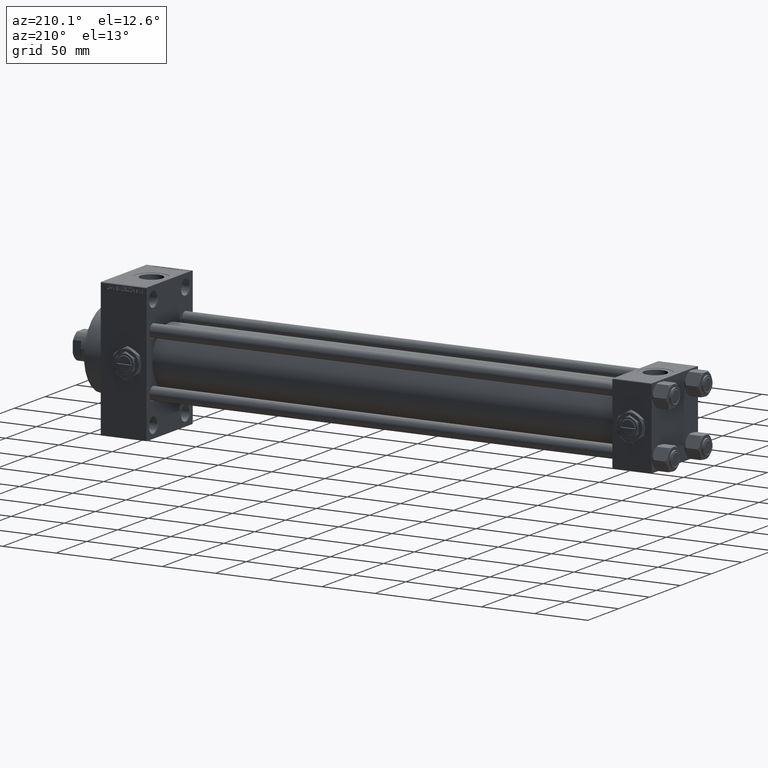
[diagram: clean part render]
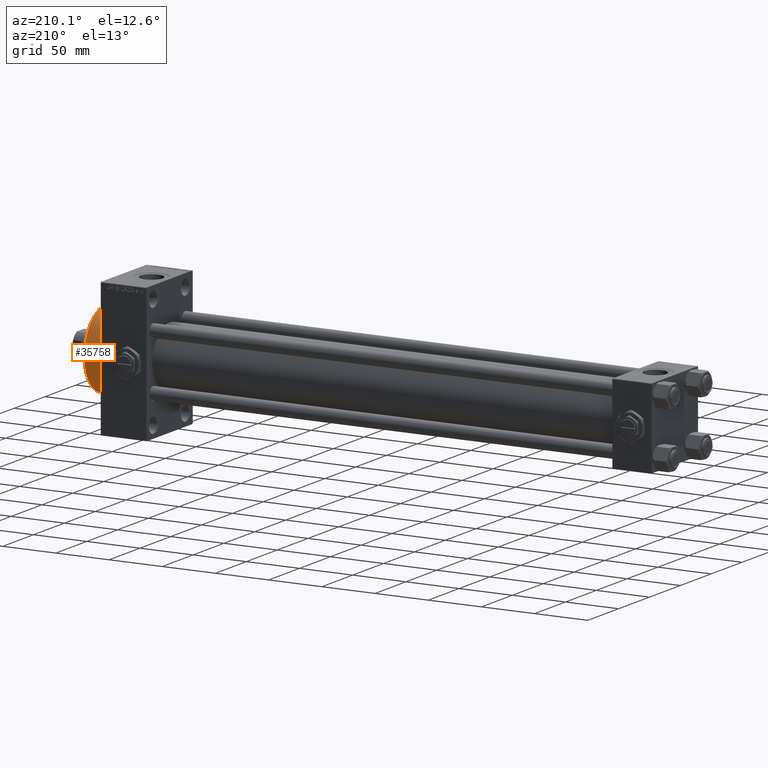
[diagram: same view with one face highlighted and labeled with its STEP entity id]
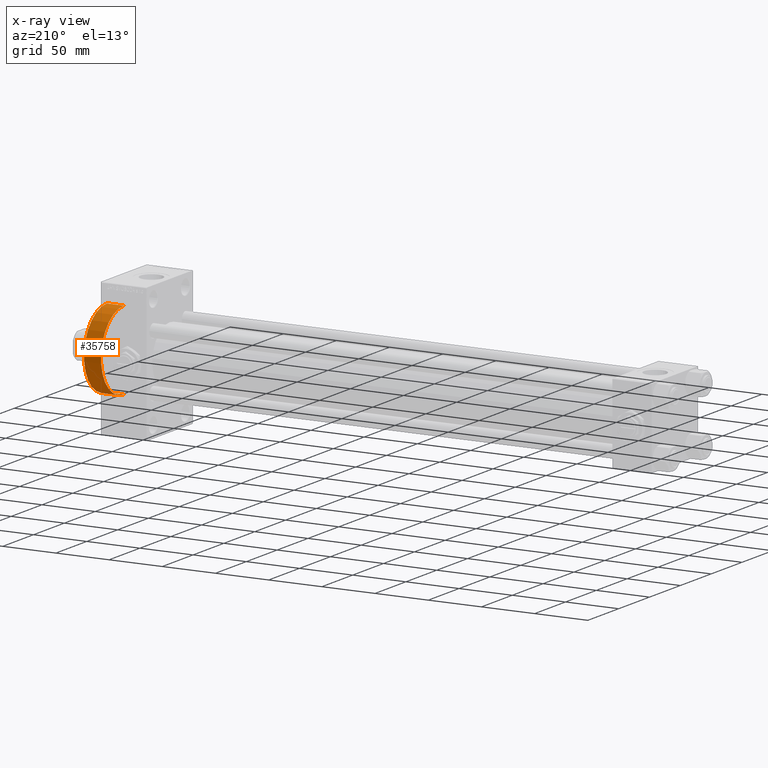
[diagram: x-ray of the same camera — body ghosted, the highlighted face saturated]
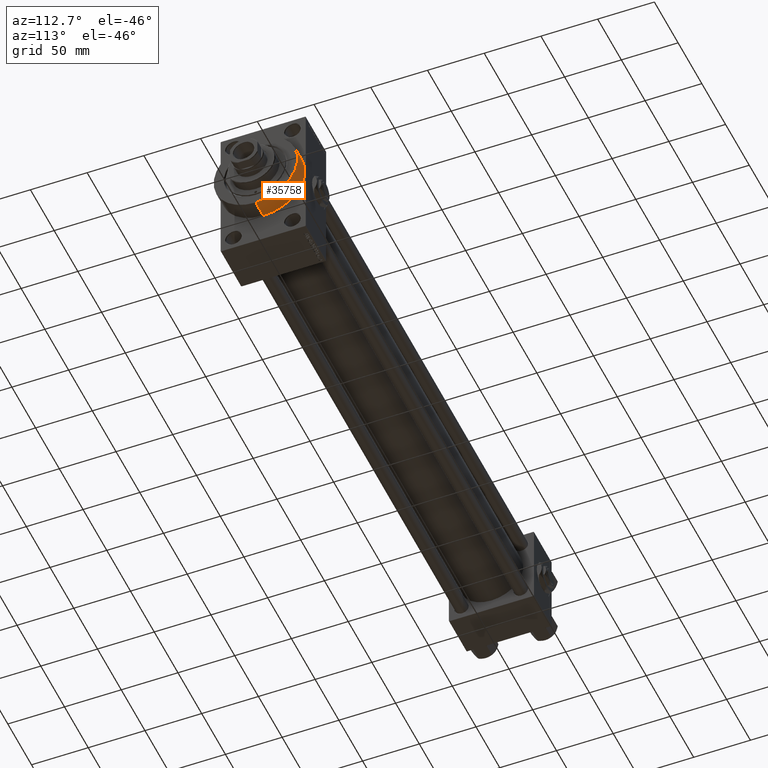
[diagram: same view with one face highlighted and labeled with its STEP entity id]
A machine part, auxiliary view. The second image highlights one B-rep face of the part: STEP entity #35758.
The next image is the same camera in x-ray: the body ghosted, the highlighted face saturated — about 0% of this face is hidden behind the body in this view.
A second angle (auxiliary view) of the same face is appended — the face is thin or edge-on in the first view.
In plain terms, the highlighted cylindrical surface (partial cylindrical patch) has radius 37 mm, axis along (-1, -0, -0).
Its self-contained STEP definition (entity closure, byte-faithful):
#1058 = EDGE_LOOP ( 'NONE', ( #23706, #1623, #44668, #47413 ) ) ;
#1623 = ORIENTED_EDGE ( 'NONE', *, *, #6618, .T. ) ;
#1685 = DIRECTION ( 'NONE',  ( 1.000000000000000000, 0.000000000000000000, 0.000000000000000000 ) ) ;
#6618 = EDGE_CURVE ( 'NONE', #11898, #19498, #41430, .T. ) ;
#7370 = FACE_OUTER_BOUND ( 'NONE', #1058, .T. ) ;
#10630 = DIRECTION ( 'NONE',  ( -1.000000000000000000, -0.000000000000000000, -0.000000000000000000 ) ) ;
#10974 = CARTESIAN_POINT ( 'NONE',  ( 534.0000000000000000, 0.000000000000000000, 37.00000000000000000 ) ) ;
#11898 = VERTEX_POINT ( 'NONE', #31183 ) ;
#12781 = EDGE_CURVE ( 'NONE', #26124, #36673, #13400, .T. ) ;
#13400 = LINE ( 'NONE', #21656, #24636 ) ;
#13938 = CARTESIAN_POINT ( 'NONE',  ( 534.0000000000000000, 0.000000000000000000, 0.000000000000000000 ) ) ;
#15142 = CYLINDRICAL_SURFACE ( 'NONE', #41778, 37.00000000000000000 ) ;
#18329 = EDGE_CURVE ( 'NONE', #19498, #36673, #40443, .T. ) ;
#18855 = AXIS2_PLACEMENT_3D ( 'NONE', #26946, #42197, #23189 ) ;
#19494 = AXIS2_PLACEMENT_3D ( 'NONE', #13938, #1685, #40478 ) ;
#19498 = VERTEX_POINT ( 'NONE', #29694 ) ;
#21656 = CARTESIAN_POINT ( 'NONE',  ( 534.0000000000000000, 0.000000000000000000, 37.00000000000000000 ) ) ;
#23189 = DIRECTION ( 'NONE',  ( 0.000000000000000000, 0.000000000000000000, -1.000000000000000000 ) ) ;
#23706 = ORIENTED_EDGE ( 'NONE', *, *, #39412, .F. ) ;
#24636 = VECTOR ( 'NONE', #28677, 1000.000000000000000 ) ;
#26124 = VERTEX_POINT ( 'NONE', #10974 ) ;
#26921 = DIRECTION ( 'NONE',  ( -1.000000000000000000, -0.000000000000000000, -0.000000000000000000 ) ) ;
#26946 = CARTESIAN_POINT ( 'NONE',  ( 518.0000000000000000, 0.000000000000000000, 0.000000000000000000 ) ) ;
#27169 = CARTESIAN_POINT ( 'NONE',  ( 534.0000000000000000, 0.000000000000000000, 0.000000000000000000 ) ) ;
#27247 = CARTESIAN_POINT ( 'NONE',  ( 518.0000000000000000, 0.000000000000000000, 37.00000000000000000 ) ) ;
#28677 = DIRECTION ( 'NONE',  ( -1.000000000000000000, -0.000000000000000000, -0.000000000000000000 ) ) ;
#29694 = CARTESIAN_POINT ( 'NONE',  ( 518.0000000000000000, 4.531193156845206793E-15, -37.00000000000000000 ) ) ;
#31183 = CARTESIAN_POINT ( 'NONE',  ( 534.0000000000000000, 4.531193156845206793E-15, -37.00000000000000000 ) ) ;
#32285 = CIRCLE ( 'NONE', #19494, 37.00000000000000000 ) ;
#33666 = CARTESIAN_POINT ( 'NONE',  ( 534.0000000000000000, 4.531193156845206793E-15, -37.00000000000000000 ) ) ;
#35758 = ADVANCED_FACE ( 'NONE', ( #7370 ), #15142, .T. ) ;
#36673 = VERTEX_POINT ( 'NONE', #27247 ) ;
#39412 = EDGE_CURVE ( 'NONE', #11898, #26124, #32285, .T. ) ;
#40443 = CIRCLE ( 'NONE', #18855, 37.00000000000000000 ) ;
#40478 = DIRECTION ( 'NONE',  ( 0.000000000000000000, 0.000000000000000000, -1.000000000000000000 ) ) ;
#41430 = LINE ( 'NONE', #33666, #42874 ) ;
#41778 = AXIS2_PLACEMENT_3D ( 'NONE', #27169, #26921, #42171 ) ;
#42171 = DIRECTION ( 'NONE',  ( 0.000000000000000000, 0.000000000000000000, 1.000000000000000000 ) ) ;
#42197 = DIRECTION ( 'NONE',  ( 1.000000000000000000, 0.000000000000000000, 0.000000000000000000 ) ) ;
#42874 = VECTOR ( 'NONE', #10630, 1000.000000000000000 ) ;
#44668 = ORIENTED_EDGE ( 'NONE', *, *, #18329, .T. ) ;
#47413 = ORIENTED_EDGE ( 'NONE', *, *, #12781, .F. ) ;